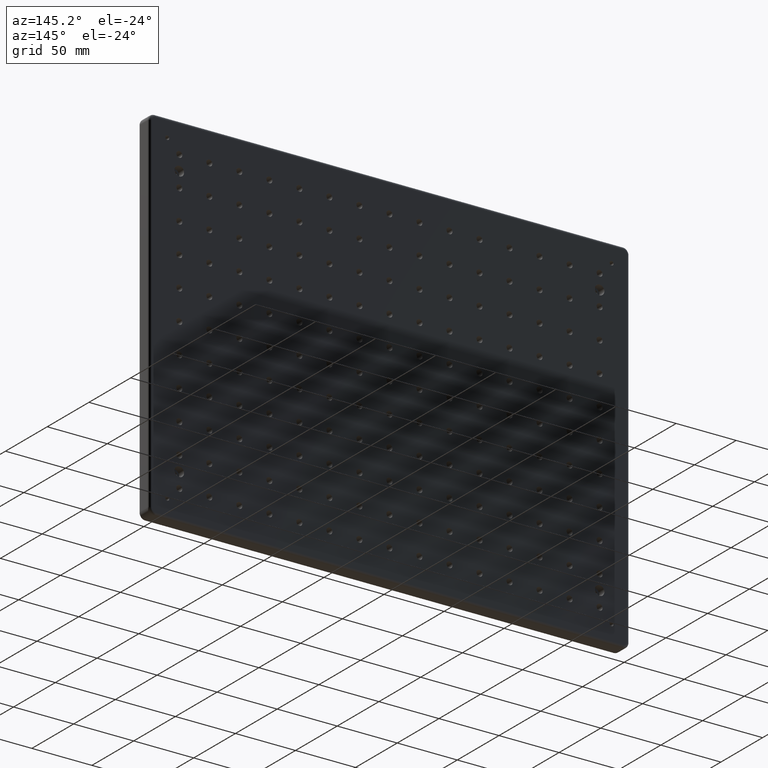
[diagram: clean part render]
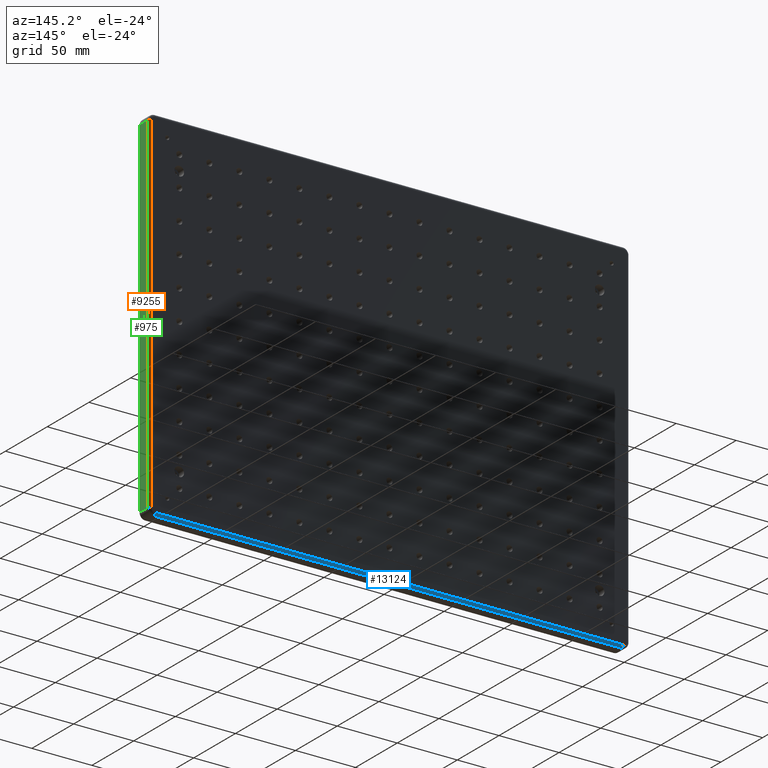
[diagram: same view with three faces highlighted in distinct colors, each labeled with its STEP entity id]
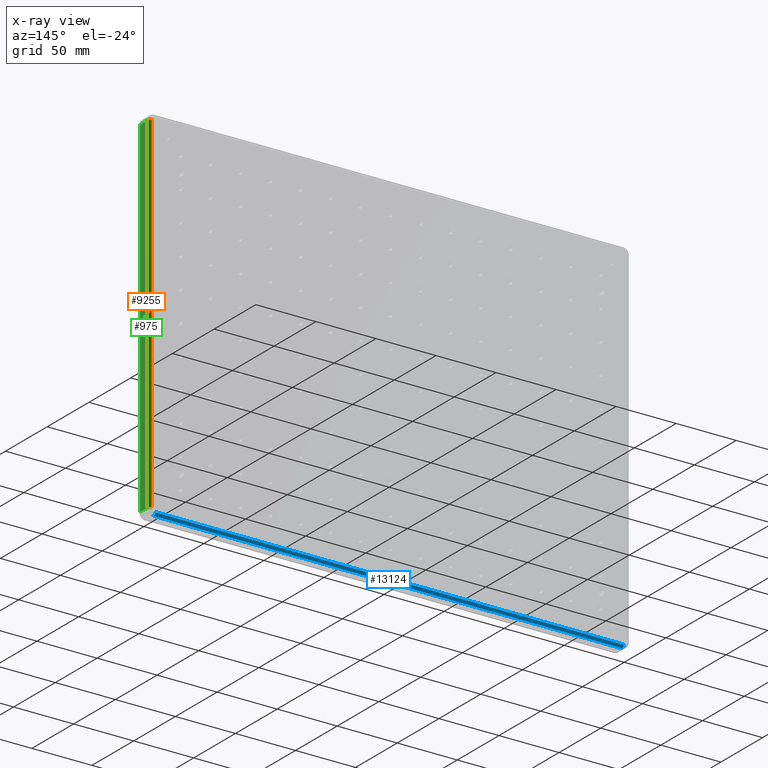
[diagram: x-ray of the same camera — body ghosted, the three highlighted faces saturated]
A machine part, auxiliary view with three faces highlighted in distinct colors.
The next image is the same camera in x-ray (body ghosted, the three faces saturated) — at least one of them is partly hidden behind the body in this view.
Their STEP definitions:

[orange] entity #9255 — the highlighted cylindrical surface (edge-blend (fillet) strip) has radius 2 mm, axis along (0, 0, -1).
#1563 = EDGE_CURVE ( 'NONE', #8131, #12131, #4365, .T. ) ;
#1868 = VERTEX_POINT ( 'NONE', #7729 ) ;
#2076 = CARTESIAN_POINT ( 'NONE',  ( 198.0000000000000000, 4.500000000000000000, -145.0000000000000000 ) ) ;
#2115 = ORIENTED_EDGE ( 'NONE', *, *, #8104, .F. ) ;
#2142 = CARTESIAN_POINT ( 'NONE',  ( 198.0000000000000000, 6.500000000000000000, 145.0000000000000000 ) ) ;
#2158 = CYLINDRICAL_SURFACE ( 'NONE', #13844, 2.000000000000001800 ) ;
#2184 = DIRECTION ( 'NONE',  ( -0.0000000000000000000, -0.0000000000000000000, 1.000000000000000000 ) ) ;
#3155 = DIRECTION ( 'NONE',  ( 1.000000000000000000, 0.0000000000000000000, 0.0000000000000000000 ) ) ;
#3168 = CARTESIAN_POINT ( 'NONE',  ( 200.0000000000000000, 4.500000000000000000, 150.0000000000000000 ) ) ;
#3772 = CARTESIAN_POINT ( 'NONE',  ( 198.0000000000000000, 4.500000000000000000, 145.0000000000000000 ) ) ;
#4365 = LINE ( 'NONE', #5032, #13289 ) ;
#4484 = DIRECTION ( 'NONE',  ( 0.0000000000000000000, 0.0000000000000000000, -1.000000000000000000 ) ) ;
#4846 = ORIENTED_EDGE ( 'NONE', *, *, #6234, .T. ) ;
#5032 = CARTESIAN_POINT ( 'NONE',  ( 198.0000000000000000, 6.500000000000000000, -150.0000000000000000 ) ) ;
#5303 = ORIENTED_EDGE ( 'NONE', *, *, #11265, .F. ) ;
#5701 = CARTESIAN_POINT ( 'NONE',  ( 200.0000000000000000, 4.500000000000000000, -145.0000000000000000 ) ) ;
#6022 = DIRECTION ( 'NONE',  ( 1.000000000000000000, 0.0000000000000000000, 0.0000000000000000000 ) ) ;
#6234 = EDGE_CURVE ( 'NONE', #6897, #12131, #12485, .T. ) ;
#6897 = VERTEX_POINT ( 'NONE', #5701 ) ;
#7297 = AXIS2_PLACEMENT_3D ( 'NONE', #3772, #10109, #6022 ) ;
#7729 = CARTESIAN_POINT ( 'NONE',  ( 200.0000000000000000, 4.500000000000000000, 145.0000000000000000 ) ) ;
#7754 = DIRECTION ( 'NONE',  ( -1.000000000000000000, 0.0000000000000000000, 0.0000000000000000000 ) ) ;
#7766 = ORIENTED_EDGE ( 'NONE', *, *, #1563, .F. ) ;
#8104 = EDGE_CURVE ( 'NONE', #6897, #1868, #8524, .T. ) ;
#8131 = VERTEX_POINT ( 'NONE', #2142 ) ;
#8177 = FACE_OUTER_BOUND ( 'NONE', #11680, .T. ) ;
#8524 = LINE ( 'NONE', #3168, #12066 ) ;
#9255 = ADVANCED_FACE ( 'NONE', ( #8177 ), #2158, .T. ) ;
#9556 = DIRECTION ( 'NONE',  ( 0.0000000000000000000, 0.0000000000000000000, 1.000000000000000000 ) ) ;
#9770 = CARTESIAN_POINT ( 'NONE',  ( 198.0000000000000000, 4.500000000000000000, -150.0000000000000000 ) ) ;
#10109 = DIRECTION ( 'NONE',  ( 0.0000000000000000000, 0.0000000000000000000, 1.000000000000000000 ) ) ;
#10324 = CIRCLE ( 'NONE', #7297, 2.000000000000001800 ) ;
#11265 = EDGE_CURVE ( 'NONE', #1868, #8131, #10324, .T. ) ;
#11680 = EDGE_LOOP ( 'NONE', ( #4846, #7766, #5303, #2115 ) ) ;
#11870 = CARTESIAN_POINT ( 'NONE',  ( 198.0000000000000000, 6.500000000000000000, -145.0000000000000000 ) ) ;
#12066 = VECTOR ( 'NONE', #2184, 1000.000000000000000 ) ;
#12131 = VERTEX_POINT ( 'NONE', #11870 ) ;
#12485 = CIRCLE ( 'NONE', #12898, 2.000000000000001800 ) ;
#12542 = DIRECTION ( 'NONE',  ( 0.0000000000000000000, 0.0000000000000000000, -1.000000000000000000 ) ) ;
#12898 = AXIS2_PLACEMENT_3D ( 'NONE', #2076, #9556, #3155 ) ;
#13289 = VECTOR ( 'NONE', #12542, 1000.000000000000000 ) ;
#13844 = AXIS2_PLACEMENT_3D ( 'NONE', #9770, #4484, #7754 ) ;

[blue] entity #13124 — the highlighted cylindrical surface (edge-blend (fillet) strip) has radius 2 mm, axis along (-1, 0, 0).
#436 = CARTESIAN_POINT ( 'NONE',  ( 195.0000000000000000, 6.500000000000000000, -148.0000000000000000 ) ) ;
#504 = LINE ( 'NONE', #9987, #4337 ) ;
#647 = EDGE_CURVE ( 'NONE', #8841, #12779, #1353, .T. ) ;
#1353 = CIRCLE ( 'NONE', #4005, 2.000000000000001800 ) ;
#2209 = VERTEX_POINT ( 'NONE', #5118 ) ;
#2224 = CYLINDRICAL_SURFACE ( 'NONE', #9689, 2.000000000000001800 ) ;
#2248 = AXIS2_PLACEMENT_3D ( 'NONE', #2778, #10273, #13562 ) ;
#2723 = FACE_OUTER_BOUND ( 'NONE', #3189, .T. ) ;
#2778 = CARTESIAN_POINT ( 'NONE',  ( -195.0000000000000000, 4.500000000000000000, -148.0000000000000000 ) ) ;
#3189 = EDGE_LOOP ( 'NONE', ( #7061, #13643, #4885, #13854 ) ) ;
#4005 = AXIS2_PLACEMENT_3D ( 'NONE', #12934, #12983, #7487 ) ;
#4118 = CARTESIAN_POINT ( 'NONE',  ( -200.0000000000000000, 4.500000000000000000, -148.0000000000000000 ) ) ;
#4337 = VECTOR ( 'NONE', #8818, 1000.000000000000000 ) ;
#4469 = CARTESIAN_POINT ( 'NONE',  ( -195.0000000000000000, 6.500000000000000000, -148.0000000000000000 ) ) ;
#4576 = VECTOR ( 'NONE', #10893, 1000.000000000000000 ) ;
#4885 = ORIENTED_EDGE ( 'NONE', *, *, #13027, .F. ) ;
#5118 = CARTESIAN_POINT ( 'NONE',  ( -195.0000000000000000, 4.500000000000000000, -150.0000000000000000 ) ) ;
#7061 = ORIENTED_EDGE ( 'NONE', *, *, #647, .T. ) ;
#7487 = DIRECTION ( 'NONE',  ( 0.0000000000000000000, 0.0000000000000000000, 1.000000000000000000 ) ) ;
#8239 = VERTEX_POINT ( 'NONE', #4469 ) ;
#8381 = DIRECTION ( 'NONE',  ( -1.000000000000000000, 0.0000000000000000000, 0.0000000000000000000 ) ) ;
#8768 = EDGE_CURVE ( 'NONE', #8841, #8239, #504, .T. ) ;
#8818 = DIRECTION ( 'NONE',  ( -1.000000000000000000, 0.0000000000000000000, 0.0000000000000000000 ) ) ;
#8829 = CARTESIAN_POINT ( 'NONE',  ( 195.0000000000000000, 4.500000000000000000, -150.0000000000000000 ) ) ;
#8841 = VERTEX_POINT ( 'NONE', #436 ) ;
#8873 = CARTESIAN_POINT ( 'NONE',  ( -200.0000000000000000, 4.500000000000000000, -150.0000000000000000 ) ) ;
#9417 = DIRECTION ( 'NONE',  ( 0.0000000000000000000, 0.0000000000000000000, 1.000000000000000000 ) ) ;
#9601 = LINE ( 'NONE', #8873, #4576 ) ;
#9689 = AXIS2_PLACEMENT_3D ( 'NONE', #4118, #8381, #9417 ) ;
#9938 = CIRCLE ( 'NONE', #2248, 2.000000000000001800 ) ;
#9987 = CARTESIAN_POINT ( 'NONE',  ( -200.0000000000000000, 6.500000000000000000, -148.0000000000000000 ) ) ;
#10273 = DIRECTION ( 'NONE',  ( -1.000000000000000000, 0.0000000000000000000, 0.0000000000000000000 ) ) ;
#10893 = DIRECTION ( 'NONE',  ( 1.000000000000000000, -0.0000000000000000000, -0.0000000000000000000 ) ) ;
#12779 = VERTEX_POINT ( 'NONE', #8829 ) ;
#12809 = EDGE_CURVE ( 'NONE', #2209, #12779, #9601, .T. ) ;
#12934 = CARTESIAN_POINT ( 'NONE',  ( 195.0000000000000000, 4.500000000000000000, -148.0000000000000000 ) ) ;
#12983 = DIRECTION ( 'NONE',  ( -1.000000000000000000, 0.0000000000000000000, 0.0000000000000000000 ) ) ;
#13027 = EDGE_CURVE ( 'NONE', #8239, #2209, #9938, .T. ) ;
#13124 = ADVANCED_FACE ( 'NONE', ( #2723 ), #2224, .T. ) ;
#13562 = DIRECTION ( 'NONE',  ( 0.0000000000000000000, 0.0000000000000000000, 1.000000000000000000 ) ) ;
#13643 = ORIENTED_EDGE ( 'NONE', *, *, #12809, .F. ) ;
#13854 = ORIENTED_EDGE ( 'NONE', *, *, #8768, .F. ) ;

[green] entity #975 — the highlighted planar face has unit normal (-1, 0, 0).
#259 = LINE ( 'NONE', #1476, #2104 ) ;
#975 = ADVANCED_FACE ( 'NONE', ( #4217 ), #8037, .F. ) ;
#1476 = CARTESIAN_POINT ( 'NONE',  ( 200.0000000000000000, 6.500000000000000000, 145.0000000000000000 ) ) ;
#1868 = VERTEX_POINT ( 'NONE', #7729 ) ;
#2104 = VECTOR ( 'NONE', #2487, 1000.000000000000000 ) ;
#2184 = DIRECTION ( 'NONE',  ( -0.0000000000000000000, -0.0000000000000000000, 1.000000000000000000 ) ) ;
#2481 = CARTESIAN_POINT ( 'NONE',  ( 200.0000000000000000, -4.500000000000000000, -145.0000000000000000 ) ) ;
#2487 = DIRECTION ( 'NONE',  ( 0.0000000000000000000, -1.000000000000000000, 0.0000000000000000000 ) ) ;
#3168 = CARTESIAN_POINT ( 'NONE',  ( 200.0000000000000000, 4.500000000000000000, 150.0000000000000000 ) ) ;
#3556 = DIRECTION ( 'NONE',  ( 0.0000000000000000000, 0.0000000000000000000, -1.000000000000000000 ) ) ;
#3657 = VECTOR ( 'NONE', #13266, 1000.000000000000000 ) ;
#3958 = EDGE_CURVE ( 'NONE', #8819, #6897, #10027, .T. ) ;
#4217 = FACE_OUTER_BOUND ( 'NONE', #5057, .T. ) ;
#4669 = AXIS2_PLACEMENT_3D ( 'NONE', #9136, #5937, #7011 ) ;
#4778 = EDGE_CURVE ( 'NONE', #8046, #8819, #10156, .T. ) ;
#5057 = EDGE_LOOP ( 'NONE', ( #6067, #12530, #9007, #6199 ) ) ;
#5470 = EDGE_CURVE ( 'NONE', #1868, #8046, #259, .T. ) ;
#5701 = CARTESIAN_POINT ( 'NONE',  ( 200.0000000000000000, 4.500000000000000000, -145.0000000000000000 ) ) ;
#5937 = DIRECTION ( 'NONE',  ( -1.000000000000000000, 0.0000000000000000000, 0.0000000000000000000 ) ) ;
#6067 = ORIENTED_EDGE ( 'NONE', *, *, #5470, .T. ) ;
#6199 = ORIENTED_EDGE ( 'NONE', *, *, #8104, .T. ) ;
#6897 = VERTEX_POINT ( 'NONE', #5701 ) ;
#7011 = DIRECTION ( 'NONE',  ( 0.0000000000000000000, 0.0000000000000000000, 1.000000000000000000 ) ) ;
#7194 = CARTESIAN_POINT ( 'NONE',  ( 200.0000000000000000, 6.500000000000000000, -145.0000000000000000 ) ) ;
#7729 = CARTESIAN_POINT ( 'NONE',  ( 200.0000000000000000, 4.500000000000000000, 145.0000000000000000 ) ) ;
#8037 = PLANE ( 'NONE',  #4669 ) ;
#8046 = VERTEX_POINT ( 'NONE', #9530 ) ;
#8104 = EDGE_CURVE ( 'NONE', #6897, #1868, #8524, .T. ) ;
#8524 = LINE ( 'NONE', #3168, #12066 ) ;
#8819 = VERTEX_POINT ( 'NONE', #8958 ) ;
#8958 = CARTESIAN_POINT ( 'NONE',  ( 200.0000000000000000, -4.500000000000000000, -145.0000000000000000 ) ) ;
#9007 = ORIENTED_EDGE ( 'NONE', *, *, #3958, .T. ) ;
#9136 = CARTESIAN_POINT ( 'NONE',  ( 200.0000000000000000, 6.500000000000000000, 150.0000000000000000 ) ) ;
#9530 = CARTESIAN_POINT ( 'NONE',  ( 200.0000000000000000, -4.500000000000000000, 145.0000000000000000 ) ) ;
#10027 = LINE ( 'NONE', #7194, #3657 ) ;
#10156 = LINE ( 'NONE', #2481, #11321 ) ;
#11321 = VECTOR ( 'NONE', #3556, 1000.000000000000000 ) ;
#12066 = VECTOR ( 'NONE', #2184, 1000.000000000000000 ) ;
#12530 = ORIENTED_EDGE ( 'NONE', *, *, #4778, .T. ) ;
#13266 = DIRECTION ( 'NONE',  ( -0.0000000000000000000, 1.000000000000000000, -0.0000000000000000000 ) ) ;